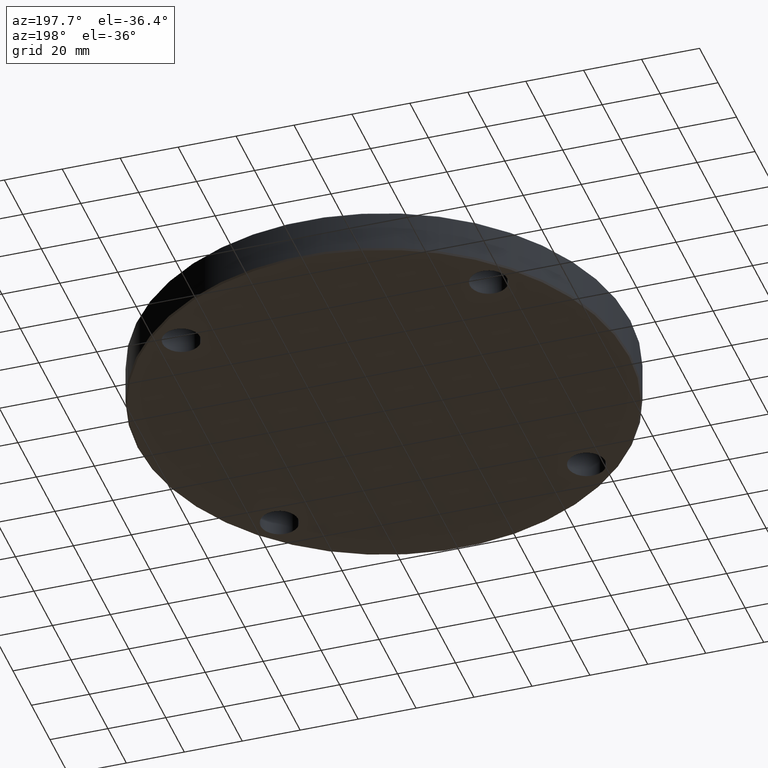
[diagram: clean part render]
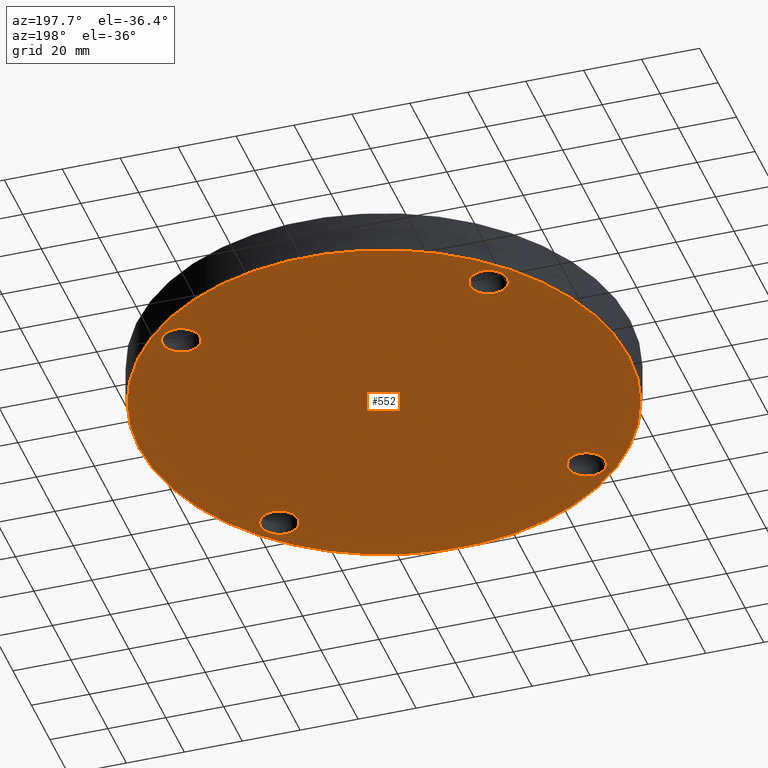
[diagram: same view with one face highlighted and labeled with its STEP entity id]
A machine part, auxiliary view. The second image highlights one B-rep face of the part: STEP entity #552.
In plain terms, the highlighted planar face has unit normal (0, 0, 1).
Its self-contained STEP definition (entity closure, byte-faithful):
#5 = CIRCLE ( 'NONE', #510, 84.50000000000001421 ) ;
#8 = CARTESIAN_POINT ( 'NONE',  ( -53.03300858899115156, 53.03300858899095971, 0.000000000000000000 ) ) ;
#9 = FACE_BOUND ( 'NONE', #434, .T. ) ;
#12 = CARTESIAN_POINT ( 'NONE',  ( -53.03300858899114445, -53.03300858899096681, 0.000000000000000000 ) ) ;
#19 = EDGE_CURVE ( 'NONE', #153, #427, #130, .T. ) ;
#22 = ORIENTED_EDGE ( 'NONE', *, *, #217, .T. ) ;
#31 = CARTESIAN_POINT ( 'NONE',  ( -84.50000000000001421, 1.037888162277381958E-14, 0.000000000000000000 ) ) ;
#35 = CIRCLE ( 'NONE', #398, 6.499999999999999112 ) ;
#41 = EDGE_CURVE ( 'NONE', #194, #540, #301, .T. ) ;
#44 = CARTESIAN_POINT ( 'NONE',  ( 53.03300858899114445, 53.03300858899096681, 0.000000000000000000 ) ) ;
#47 = DIRECTION ( 'NONE',  ( 0.000000000000000000, 0.000000000000000000, 1.000000000000000000 ) ) ;
#48 = DIRECTION ( 'NONE',  ( 1.000000000000000000, 0.000000000000000000, 0.000000000000000000 ) ) ;
#58 = DIRECTION ( 'NONE',  ( 1.000000000000000000, 0.000000000000000000, 0.000000000000000000 ) ) ;
#81 = DIRECTION ( 'NONE',  ( 0.000000000000000000, 0.000000000000000000, 1.000000000000000000 ) ) ;
#85 = DIRECTION ( 'NONE',  ( 0.000000000000000000, 0.000000000000000000, 1.000000000000000000 ) ) ;
#86 = CIRCLE ( 'NONE', #418, 6.499999999999999112 ) ;
#92 = EDGE_CURVE ( 'NONE', #241, #376, #447, .T. ) ;
#96 = EDGE_CURVE ( 'NONE', #385, #315, #86, .T. ) ;
#98 = CARTESIAN_POINT ( 'NONE',  ( -53.03300858899114445, -53.03300858899096681, 0.000000000000000000 ) ) ;
#116 = ORIENTED_EDGE ( 'NONE', *, *, #41, .T. ) ;
#117 = AXIS2_PLACEMENT_3D ( 'NONE', #454, #502, #275 ) ;
#119 = VERTEX_POINT ( 'NONE', #155 ) ;
#124 = CIRCLE ( 'NONE', #496, 6.499999999999999112 ) ;
#125 = DIRECTION ( 'NONE',  ( 1.000000000000000000, 0.000000000000000000, 0.000000000000000000 ) ) ;
#130 = CIRCLE ( 'NONE', #142, 6.499999999999999112 ) ;
#136 = CARTESIAN_POINT ( 'NONE',  ( 0.000000000000000000, 0.000000000000000000, 0.000000000000000000 ) ) ;
#138 = DIRECTION ( 'NONE',  ( 0.000000000000000000, 0.000000000000000000, 1.000000000000000000 ) ) ;
#140 = FACE_OUTER_BOUND ( 'NONE', #328, .T. ) ;
#142 = AXIS2_PLACEMENT_3D ( 'NONE', #44, #85, #308 ) ;
#152 = AXIS2_PLACEMENT_3D ( 'NONE', #565, #81, #125 ) ;
#153 = VERTEX_POINT ( 'NONE', #462 ) ;
#155 = CARTESIAN_POINT ( 'NONE',  ( -46.53300858899115156, -53.03300858899096681, 0.000000000000000000 ) ) ;
#172 = CIRCLE ( 'NONE', #152, 6.499999999999999112 ) ;
#174 = ORIENTED_EDGE ( 'NONE', *, *, #387, .T. ) ;
#179 = EDGE_LOOP ( 'NONE', ( #174, #443 ) ) ;
#180 = AXIS2_PLACEMENT_3D ( 'NONE', #12, #186, #58 ) ;
#181 = AXIS2_PLACEMENT_3D ( 'NONE', #98, #498, #48 ) ;
#182 = CARTESIAN_POINT ( 'NONE',  ( -59.53300858899114445, -53.03300858899096681, 0.000000000000000000 ) ) ;
#186 = DIRECTION ( 'NONE',  ( 0.000000000000000000, 0.000000000000000000, 1.000000000000000000 ) ) ;
#190 = AXIS2_PLACEMENT_3D ( 'NONE', #257, #405, #402 ) ;
#194 = VERTEX_POINT ( 'NONE', #201 ) ;
#201 = CARTESIAN_POINT ( 'NONE',  ( 46.53300858899152104, -53.03300858899059023, 0.000000000000000000 ) ) ;
#214 = DIRECTION ( 'NONE',  ( 1.000000000000000000, 0.000000000000000000, 0.000000000000000000 ) ) ;
#217 = EDGE_CURVE ( 'NONE', #553, #119, #380, .T. ) ;
#218 = CARTESIAN_POINT ( 'NONE',  ( 46.53300858899115156, 53.03300858899096681, 0.000000000000000000 ) ) ;
#223 = EDGE_CURVE ( 'NONE', #540, #194, #35, .T. ) ;
#241 = VERTEX_POINT ( 'NONE', #273 ) ;
#257 = CARTESIAN_POINT ( 'NONE',  ( 0.000000000000000000, 0.000000000000000000, 0.000000000000000000 ) ) ;
#273 = CARTESIAN_POINT ( 'NONE',  ( 84.50000000000001421, 0.000000000000000000, 0.000000000000000000 ) ) ;
#275 = DIRECTION ( 'NONE',  ( 1.000000000000000000, 0.000000000000000000, -0.000000000000000000 ) ) ;
#286 = ORIENTED_EDGE ( 'NONE', *, *, #19, .T. ) ;
#287 = ORIENTED_EDGE ( 'NONE', *, *, #507, .T. ) ;
#300 = CARTESIAN_POINT ( 'NONE',  ( -46.53300858899115866, 53.03300858899095971, 0.000000000000000000 ) ) ;
#301 = CIRCLE ( 'NONE', #476, 6.499999999999999112 ) ;
#308 = DIRECTION ( 'NONE',  ( 1.000000000000000000, 0.000000000000000000, 0.000000000000000000 ) ) ;
#314 = CARTESIAN_POINT ( 'NONE',  ( 59.53300858899152104, -53.03300858899059023, 0.000000000000000000 ) ) ;
#315 = VERTEX_POINT ( 'NONE', #300 ) ;
#318 = FACE_BOUND ( 'NONE', #179, .T. ) ;
#328 = EDGE_LOOP ( 'NONE', ( #353, #287 ) ) ;
#333 = CIRCLE ( 'NONE', #181, 6.499999999999999112 ) ;
#350 = ORIENTED_EDGE ( 'NONE', *, *, #457, .T. ) ;
#353 = ORIENTED_EDGE ( 'NONE', *, *, #92, .T. ) ;
#356 = FACE_BOUND ( 'NONE', #419, .T. ) ;
#358 = DIRECTION ( 'NONE',  ( -0.000000000000000000, -0.000000000000000000, -1.000000000000000000 ) ) ;
#365 = DIRECTION ( 'NONE',  ( 1.000000000000000000, 0.000000000000000000, 0.000000000000000000 ) ) ;
#376 = VERTEX_POINT ( 'NONE', #31 ) ;
#380 = CIRCLE ( 'NONE', #180, 6.499999999999999112 ) ;
#385 = VERTEX_POINT ( 'NONE', #433 ) ;
#387 = EDGE_CURVE ( 'NONE', #315, #385, #124, .T. ) ;
#388 = ORIENTED_EDGE ( 'NONE', *, *, #406, .T. ) ;
#397 = DIRECTION ( 'NONE',  ( 0.000000000000000000, 0.000000000000000000, 1.000000000000000000 ) ) ;
#398 = AXIS2_PLACEMENT_3D ( 'NONE', #501, #138, #365 ) ;
#402 = DIRECTION ( 'NONE',  ( 1.000000000000000000, 0.000000000000000000, 0.000000000000000000 ) ) ;
#404 = FACE_BOUND ( 'NONE', #524, .T. ) ;
#405 = DIRECTION ( 'NONE',  ( -0.000000000000000000, -0.000000000000000000, -1.000000000000000000 ) ) ;
#406 = EDGE_CURVE ( 'NONE', #427, #153, #172, .T. ) ;
#418 = AXIS2_PLACEMENT_3D ( 'NONE', #8, #487, #214 ) ;
#419 = EDGE_LOOP ( 'NONE', ( #522, #116 ) ) ;
#427 = VERTEX_POINT ( 'NONE', #218 ) ;
#433 = CARTESIAN_POINT ( 'NONE',  ( -59.53300858899115156, 53.03300858899095971, 0.000000000000000000 ) ) ;
#434 = EDGE_LOOP ( 'NONE', ( #286, #388 ) ) ;
#441 = CARTESIAN_POINT ( 'NONE',  ( 53.03300858899152104, -53.03300858899059023, 0.000000000000000000 ) ) ;
#443 = ORIENTED_EDGE ( 'NONE', *, *, #96, .T. ) ;
#447 = CIRCLE ( 'NONE', #190, 84.50000000000001421 ) ;
#450 = DIRECTION ( 'NONE',  ( 1.000000000000000000, 0.000000000000000000, 0.000000000000000000 ) ) ;
#454 = CARTESIAN_POINT ( 'NONE',  ( 0.000000000000000000, 0.000000000000000000, 0.000000000000000000 ) ) ;
#457 = EDGE_CURVE ( 'NONE', #119, #553, #333, .T. ) ;
#462 = CARTESIAN_POINT ( 'NONE',  ( 59.53300858899114445, 53.03300858899096681, 0.000000000000000000 ) ) ;
#476 = AXIS2_PLACEMENT_3D ( 'NONE', #441, #47, #489 ) ;
#485 = DIRECTION ( 'NONE',  ( 1.000000000000000000, 0.000000000000000000, 0.000000000000000000 ) ) ;
#487 = DIRECTION ( 'NONE',  ( 0.000000000000000000, 0.000000000000000000, 1.000000000000000000 ) ) ;
#489 = DIRECTION ( 'NONE',  ( 1.000000000000000000, 0.000000000000000000, 0.000000000000000000 ) ) ;
#496 = AXIS2_PLACEMENT_3D ( 'NONE', #527, #397, #485 ) ;
#498 = DIRECTION ( 'NONE',  ( 0.000000000000000000, 0.000000000000000000, 1.000000000000000000 ) ) ;
#501 = CARTESIAN_POINT ( 'NONE',  ( 53.03300858899152104, -53.03300858899059023, 0.000000000000000000 ) ) ;
#502 = DIRECTION ( 'NONE',  ( 0.000000000000000000, 0.000000000000000000, 1.000000000000000000 ) ) ;
#507 = EDGE_CURVE ( 'NONE', #376, #241, #5, .T. ) ;
#510 = AXIS2_PLACEMENT_3D ( 'NONE', #136, #358, #450 ) ;
#522 = ORIENTED_EDGE ( 'NONE', *, *, #223, .T. ) ;
#524 = EDGE_LOOP ( 'NONE', ( #350, #22 ) ) ;
#527 = CARTESIAN_POINT ( 'NONE',  ( -53.03300858899115156, 53.03300858899095971, 0.000000000000000000 ) ) ;
#534 = PLANE ( 'NONE',  #117 ) ;
#540 = VERTEX_POINT ( 'NONE', #314 ) ;
#552 = ADVANCED_FACE ( 'NONE', ( #140, #356, #404, #318, #9 ), #534, .F. ) ;
#553 = VERTEX_POINT ( 'NONE', #182 ) ;
#565 = CARTESIAN_POINT ( 'NONE',  ( 53.03300858899114445, 53.03300858899096681, 0.000000000000000000 ) ) ;